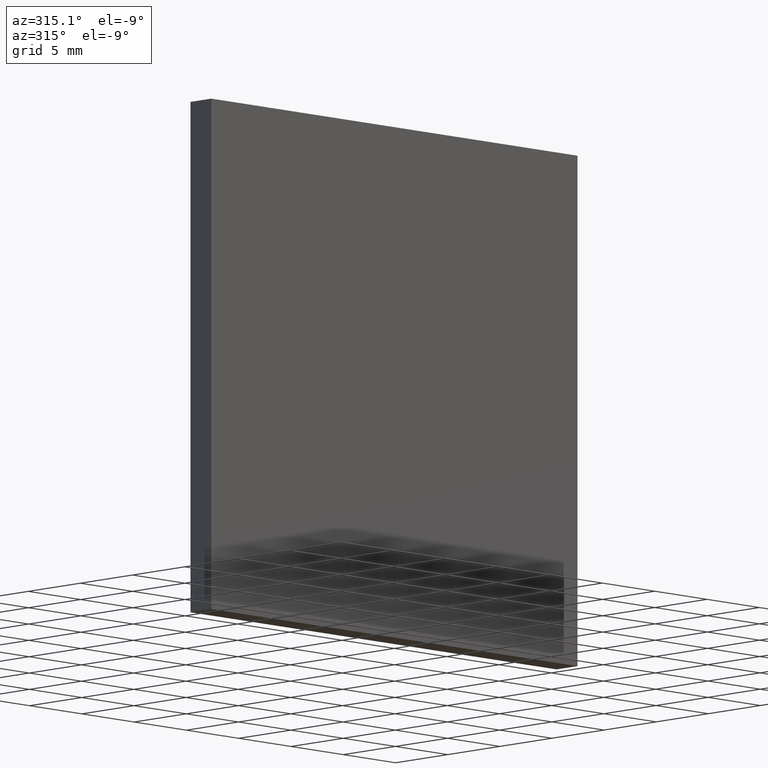
[diagram: clean part render]
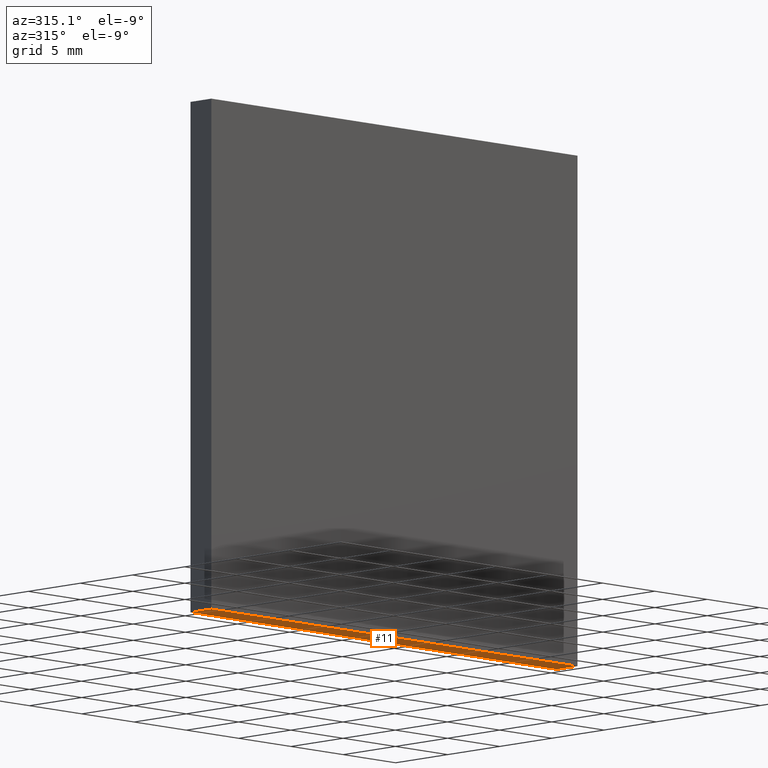
[diagram: same view with one face highlighted and labeled with its STEP entity id]
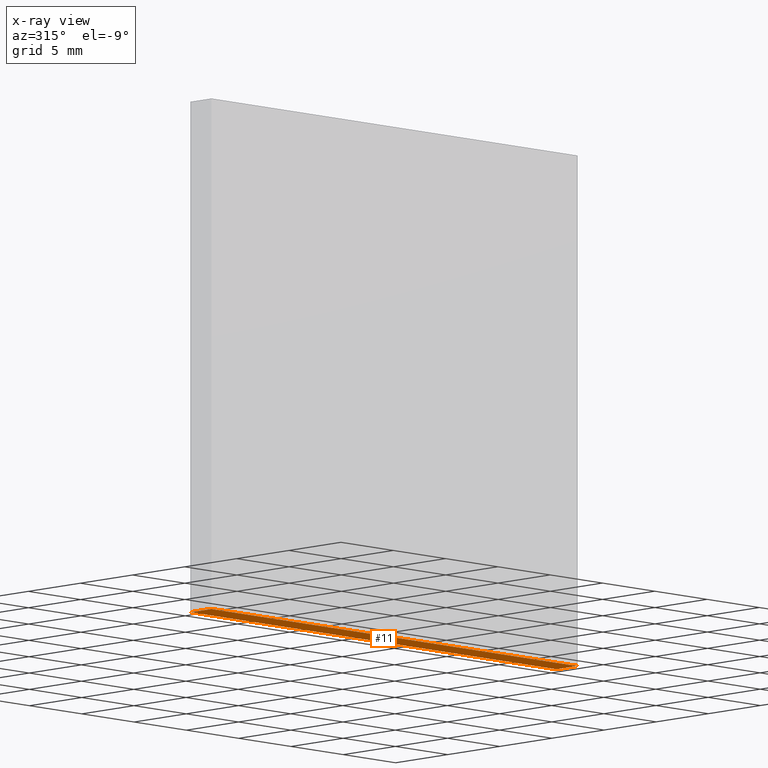
[diagram: x-ray of the same camera — body ghosted, the highlighted face saturated]
A machine part, auxiliary view. The second image highlights one B-rep face of the part: STEP entity #11.
The next image is the same camera in x-ray: the body ghosted, the highlighted face saturated — about 0% of this face is hidden behind the body in this view.
In plain terms, the highlighted planar face has unit normal (0, 0, 1).
Its self-contained STEP definition (entity closure, byte-faithful):
#11 = ADVANCED_FACE ( 'NONE', ( #144 ), #90, .F. ) ;
#12 = VECTOR ( 'NONE', #37, 1000.000000000000000 ) ;
#15 = LINE ( 'NONE', #84, #87 ) ;
#16 = LINE ( 'NONE', #138, #65 ) ;
#17 = VERTEX_POINT ( 'NONE', #193 ) ;
#24 = DIRECTION ( 'NONE',  ( 0.0000000000000000000, 0.0000000000000000000, 1.000000000000000000 ) ) ;
#26 = VECTOR ( 'NONE', #162, 1000.000000000000000 ) ;
#30 = ORIENTED_EDGE ( 'NONE', *, *, #130, .F. ) ;
#37 = DIRECTION ( 'NONE',  ( -0.0000000000000000000, -1.000000000000000000, -0.0000000000000000000 ) ) ;
#39 = VERTEX_POINT ( 'NONE', #191 ) ;
#43 = VERTEX_POINT ( 'NONE', #72 ) ;
#47 = LINE ( 'NONE', #78, #12 ) ;
#53 = EDGE_CURVE ( 'NONE', #43, #167, #16, .T. ) ;
#65 = VECTOR ( 'NONE', #179, 1000.000000000000000 ) ;
#69 = CARTESIAN_POINT ( 'NONE',  ( -17.50000000000000000, 0.0000000000000000000, -17.50000000000000000 ) ) ;
#72 = CARTESIAN_POINT ( 'NONE',  ( 17.50000000000000000, 2.000000000000000000, -17.50000000000000000 ) ) ;
#76 = EDGE_CURVE ( 'NONE', #43, #39, #15, .T. ) ;
#78 = CARTESIAN_POINT ( 'NONE',  ( -17.50000000000000000, 2.000000000000000000, -17.50000000000000000 ) ) ;
#84 = CARTESIAN_POINT ( 'NONE',  ( 17.50000000000000000, 2.000000000000000000, -17.50000000000000000 ) ) ;
#87 = VECTOR ( 'NONE', #182, 1000.000000000000000 ) ;
#88 = DIRECTION ( 'NONE',  ( 1.000000000000000000, 0.0000000000000000000, -0.0000000000000000000 ) ) ;
#90 = PLANE ( 'NONE',  #107 ) ;
#97 = CARTESIAN_POINT ( 'NONE',  ( -17.50000000000000000, 2.000000000000000000, -17.50000000000000000 ) ) ;
#102 = CARTESIAN_POINT ( 'NONE',  ( -17.50000000000000000, 2.000000000000000000, -17.50000000000000000 ) ) ;
#106 = LINE ( 'NONE', #69, #26 ) ;
#107 = AXIS2_PLACEMENT_3D ( 'NONE', #102, #24, #88 ) ;
#109 = EDGE_LOOP ( 'NONE', ( #184, #30, #202, #197 ) ) ;
#120 = EDGE_CURVE ( 'NONE', #39, #17, #106, .T. ) ;
#130 = EDGE_CURVE ( 'NONE', #167, #17, #47, .T. ) ;
#138 = CARTESIAN_POINT ( 'NONE',  ( -17.50000000000000000, 2.000000000000000000, -17.50000000000000000 ) ) ;
#144 = FACE_OUTER_BOUND ( 'NONE', #109, .T. ) ;
#162 = DIRECTION ( 'NONE',  ( -1.000000000000000000, -0.0000000000000000000, -0.0000000000000000000 ) ) ;
#167 = VERTEX_POINT ( 'NONE', #97 ) ;
#179 = DIRECTION ( 'NONE',  ( -1.000000000000000000, -0.0000000000000000000, -0.0000000000000000000 ) ) ;
#182 = DIRECTION ( 'NONE',  ( -0.0000000000000000000, -1.000000000000000000, -0.0000000000000000000 ) ) ;
#184 = ORIENTED_EDGE ( 'NONE', *, *, #120, .T. ) ;
#191 = CARTESIAN_POINT ( 'NONE',  ( 17.50000000000000000, 0.0000000000000000000, -17.50000000000000000 ) ) ;
#193 = CARTESIAN_POINT ( 'NONE',  ( -17.50000000000000000, 0.0000000000000000000, -17.50000000000000000 ) ) ;
#197 = ORIENTED_EDGE ( 'NONE', *, *, #76, .T. ) ;
#202 = ORIENTED_EDGE ( 'NONE', *, *, #53, .F. ) ;